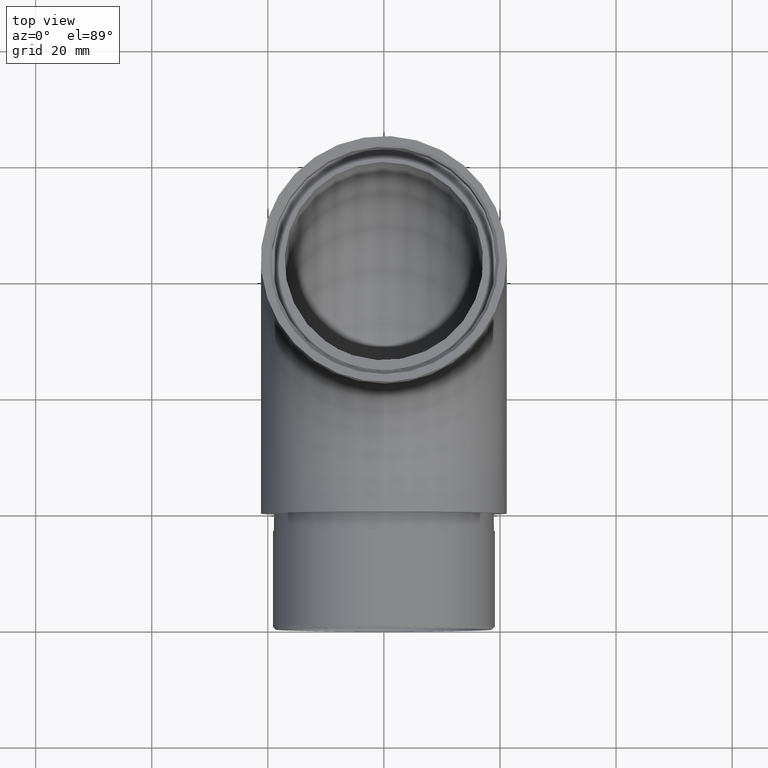
[diagram: clean part render]
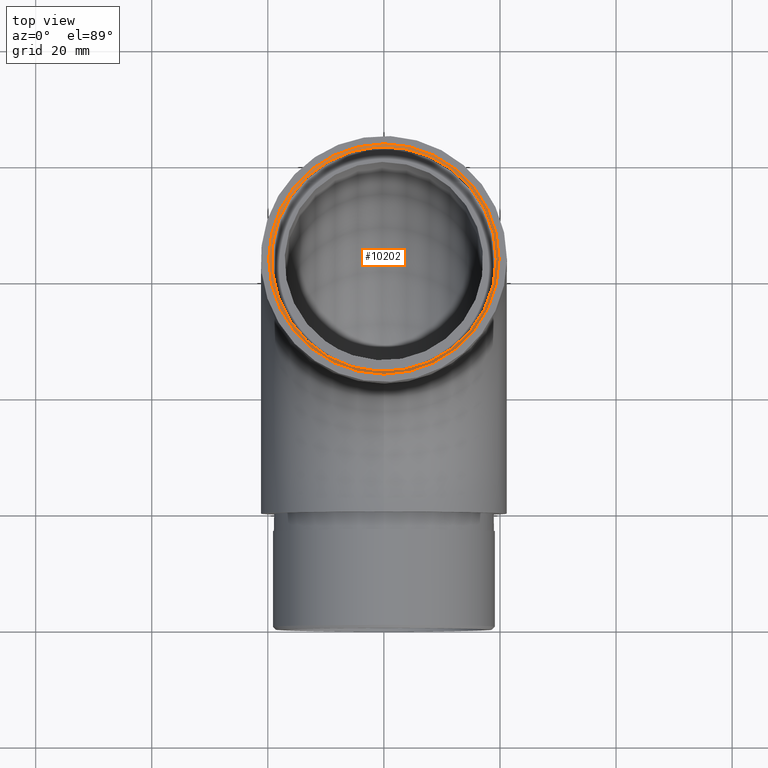
[diagram: same view with one face highlighted and labeled with its STEP entity id]
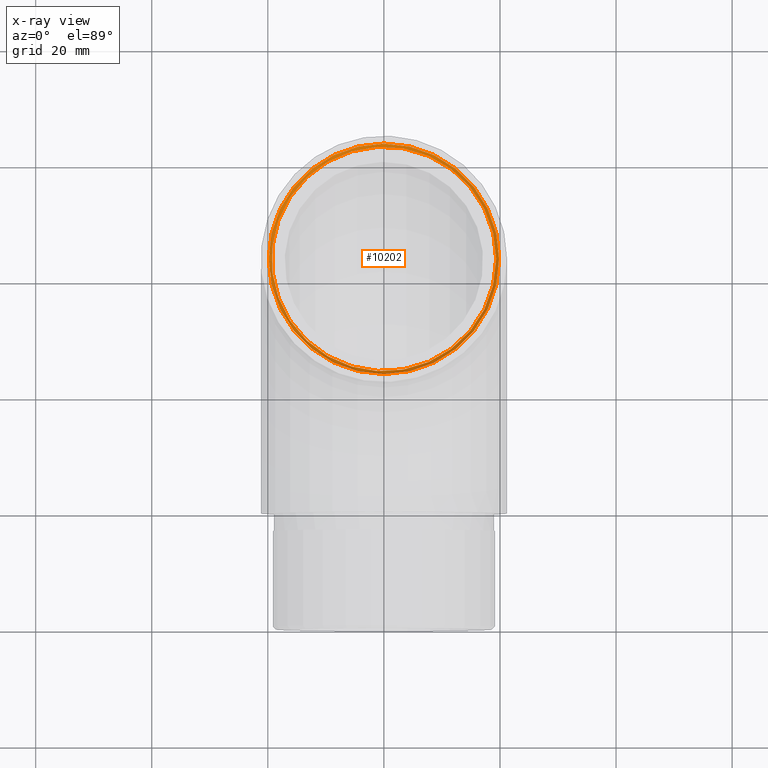
[diagram: x-ray of the same camera — body ghosted, the highlighted face saturated]
A machine part, top view. The second image highlights one B-rep face of the part: STEP entity #10202.
The next image is the same camera in x-ray: the body ghosted, the highlighted face saturated — about 0% of this face is hidden behind the body in this view.
In plain terms, the highlighted conical surface has half-angle 45 deg.
Its self-contained STEP definition (entity closure, byte-faithful):
#62 = FACE_BOUND ( 'NONE', #11626, .T. ) ;
#490 = CIRCLE ( 'NONE', #11139, 19.85000000000007200 ) ;
#907 = CARTESIAN_POINT ( 'NONE',  ( 19.34999999999999800, 42.79999999999998300, 62.29999999999993300 ) ) ;
#1520 = AXIS2_PLACEMENT_3D ( 'NONE', #10949, #11933, #6018 ) ;
#1868 = CARTESIAN_POINT ( 'NONE',  ( 19.85000000000007200, 42.79999999999998300, 62.79999999999999700 ) ) ;
#2823 = AXIS2_PLACEMENT_3D ( 'NONE', #10533, #3608, #10446 ) ;
#3608 = DIRECTION ( 'NONE',  ( 0.0000000000000000000, 0.0000000000000000000, 1.000000000000000000 ) ) ;
#4363 = CIRCLE ( 'NONE', #1520, 19.34999999999999800 ) ;
#4518 = ORIENTED_EDGE ( 'NONE', *, *, #6308, .F. ) ;
#5426 = FACE_OUTER_BOUND ( 'NONE', #5696, .T. ) ;
#5696 = EDGE_LOOP ( 'NONE', ( #10150 ) ) ;
#6018 = DIRECTION ( 'NONE',  ( 1.000000000000000000, 0.0000000000000000000, 0.0000000000000000000 ) ) ;
#6308 = EDGE_CURVE ( 'NONE', #9269, #9269, #4363, .T. ) ;
#7172 = DIRECTION ( 'NONE',  ( 1.000000000000000000, 0.0000000000000000000, 0.0000000000000000000 ) ) ;
#9157 = CARTESIAN_POINT ( 'NONE',  ( 0.0000000000000000000, 42.79999999999998300, 62.79999999999999700 ) ) ;
#9269 = VERTEX_POINT ( 'NONE', #907 ) ;
#10150 = ORIENTED_EDGE ( 'NONE', *, *, #12051, .F. ) ;
#10168 = DIRECTION ( 'NONE',  ( -0.0000000000000000000, -0.0000000000000000000, -1.000000000000000000 ) ) ;
#10202 = ADVANCED_FACE ( 'NONE', ( #5426, #62 ), #11147, .F. ) ;
#10446 = DIRECTION ( 'NONE',  ( 1.000000000000000000, 0.0000000000000000000, 0.0000000000000000000 ) ) ;
#10533 = CARTESIAN_POINT ( 'NONE',  ( 0.0000000000000000000, 42.79999999999998300, 62.29999999999993300 ) ) ;
#10646 = VERTEX_POINT ( 'NONE', #1868 ) ;
#10949 = CARTESIAN_POINT ( 'NONE',  ( 0.0000000000000000000, 42.79999999999998300, 62.29999999999993300 ) ) ;
#11139 = AXIS2_PLACEMENT_3D ( 'NONE', #9157, #10168, #7172 ) ;
#11147 = CONICAL_SURFACE ( 'NONE', #2823, 19.34999999999999800, 0.7853981633974587200 ) ;
#11626 = EDGE_LOOP ( 'NONE', ( #4518 ) ) ;
#11933 = DIRECTION ( 'NONE',  ( 0.0000000000000000000, 0.0000000000000000000, 1.000000000000000000 ) ) ;
#12051 = EDGE_CURVE ( 'NONE', #10646, #10646, #490, .T. ) ;